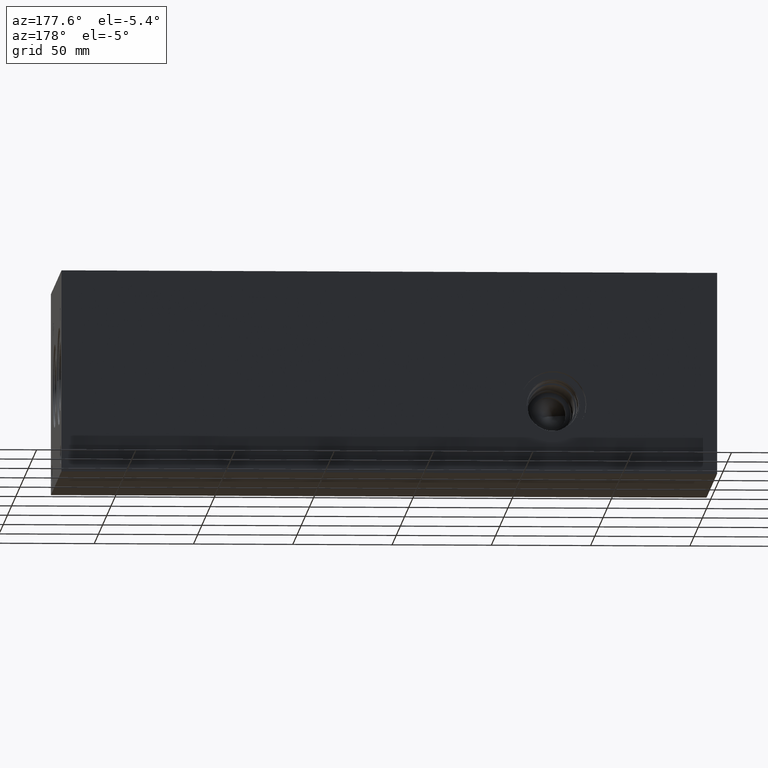
[diagram: clean part render]
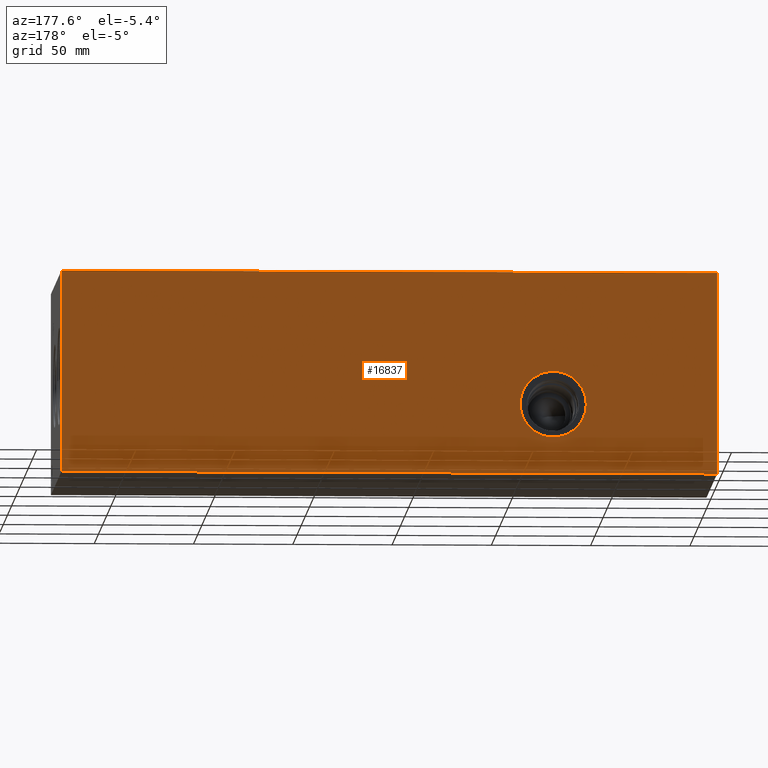
[diagram: same view with one face highlighted and labeled with its STEP entity id]
A machine part, auxiliary view. The second image highlights one B-rep face of the part: STEP entity #16837.
In plain terms, the highlighted planar face has unit normal (0, 1, 0).
Its self-contained STEP definition (entity closure, byte-faithful):
#468=CIRCLE('',#17291,16.6624);
#469=CIRCLE('',#17292,16.6624);
#1439=FACE_BOUND('',#3345,.T.);
#2343=FACE_OUTER_BOUND('',#3344,.T.);
#3344=EDGE_LOOP('',(#14842,#14843,#14844,#14845));
#3345=EDGE_LOOP('',(#14846,#14847));
#3920=LINE('',#24474,#5378);
#3980=LINE('',#24747,#5438);
#4838=LINE('',#29207,#6296);
#4839=LINE('',#29208,#6297);
#5378=VECTOR('',#18812,10.);
#5438=VECTOR('',#18926,10.);
#6296=VECTOR('',#21792,10.);
#6297=VECTOR('',#21793,10.);
#6918=VERTEX_POINT('',#24471);
#6919=VERTEX_POINT('',#24473);
#6976=VERTEX_POINT('',#24743);
#6977=VERTEX_POINT('',#24745);
#7420=VERTEX_POINT('',#27762);
#7421=VERTEX_POINT('',#27763);
#8694=EDGE_CURVE('',#6918,#6919,#3920,.T.);
#8778=EDGE_CURVE('',#6976,#6977,#3980,.T.);
#9584=EDGE_CURVE('',#7420,#7421,#468,.T.);
#9585=EDGE_CURVE('',#7421,#7420,#469,.T.);
#10256=EDGE_CURVE('',#6918,#6976,#4838,.T.);
#10257=EDGE_CURVE('',#6919,#6977,#4839,.T.);
#14842=ORIENTED_EDGE('',*,*,#10256,.T.);
#14843=ORIENTED_EDGE('',*,*,#8778,.T.);
#14844=ORIENTED_EDGE('',*,*,#10257,.F.);
#14845=ORIENTED_EDGE('',*,*,#8694,.F.);
#14846=ORIENTED_EDGE('',*,*,#9584,.T.);
#14847=ORIENTED_EDGE('',*,*,#9585,.T.);
#15385=PLANE('',#18013);
#16837=ADVANCED_FACE('',(#2343,#1439),#15385,.T.);
#17291=AXIS2_PLACEMENT_3D('',#27764,#20124,#20125);
#17292=AXIS2_PLACEMENT_3D('',#27765,#20126,#20127);
#18013=AXIS2_PLACEMENT_3D('',#29206,#21790,#21791);
#18812=DIRECTION('',(0.,0.,1.));
#18926=DIRECTION('',(0.,0.,1.));
#20124=DIRECTION('center_axis',(0.,-1.,0.));
#20125=DIRECTION('ref_axis',(1.,0.,0.));
#20126=DIRECTION('center_axis',(0.,-1.,0.));
#20127=DIRECTION('ref_axis',(1.,0.,0.));
#21790=DIRECTION('center_axis',(0.,1.,0.));
#21791=DIRECTION('ref_axis',(-1.,0.,0.));
#21792=DIRECTION('',(-1.,0.,0.));
#21793=DIRECTION('',(-1.,0.,0.));
#24471=CARTESIAN_POINT('',(330.2,127.,0.));
#24473=CARTESIAN_POINT('',(330.2,127.,101.6));
#24474=CARTESIAN_POINT('',(330.2,127.,0.));
#24743=CARTESIAN_POINT('',(0.,127.,0.));
#24745=CARTESIAN_POINT('',(0.,127.,101.6));
#24747=CARTESIAN_POINT('',(0.,127.,0.));
#27762=CARTESIAN_POINT('',(99.2124,127.,34.925));
#27763=CARTESIAN_POINT('',(65.8876,127.,34.925));
#27764=CARTESIAN_POINT('Origin',(82.55,127.,34.925));
#27765=CARTESIAN_POINT('Origin',(82.55,127.,34.925));
#29206=CARTESIAN_POINT('Origin',(330.2,127.,0.));
#29207=CARTESIAN_POINT('',(330.2,127.,0.));
#29208=CARTESIAN_POINT('',(330.2,127.,101.6));